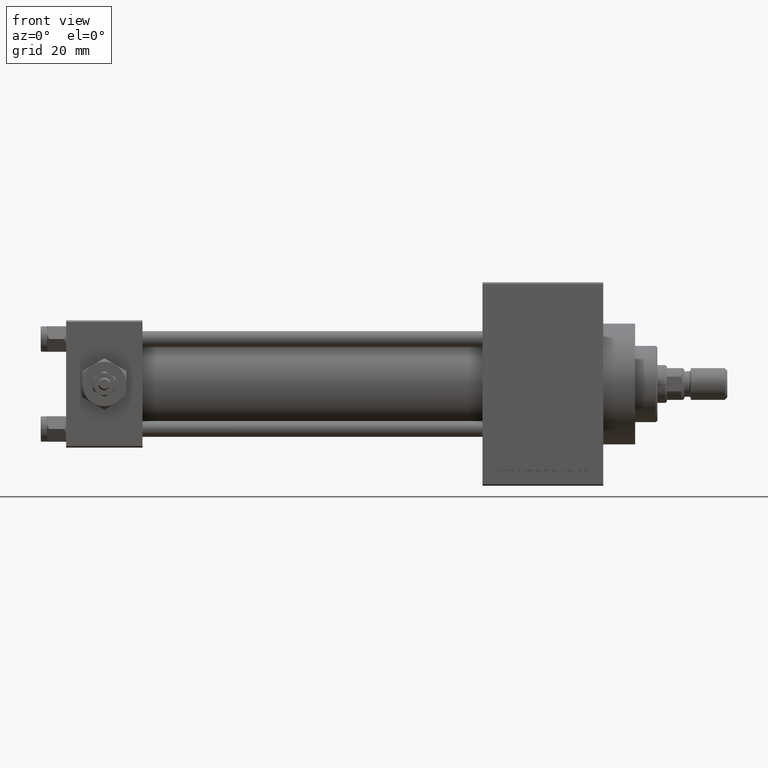
[diagram: clean part render]
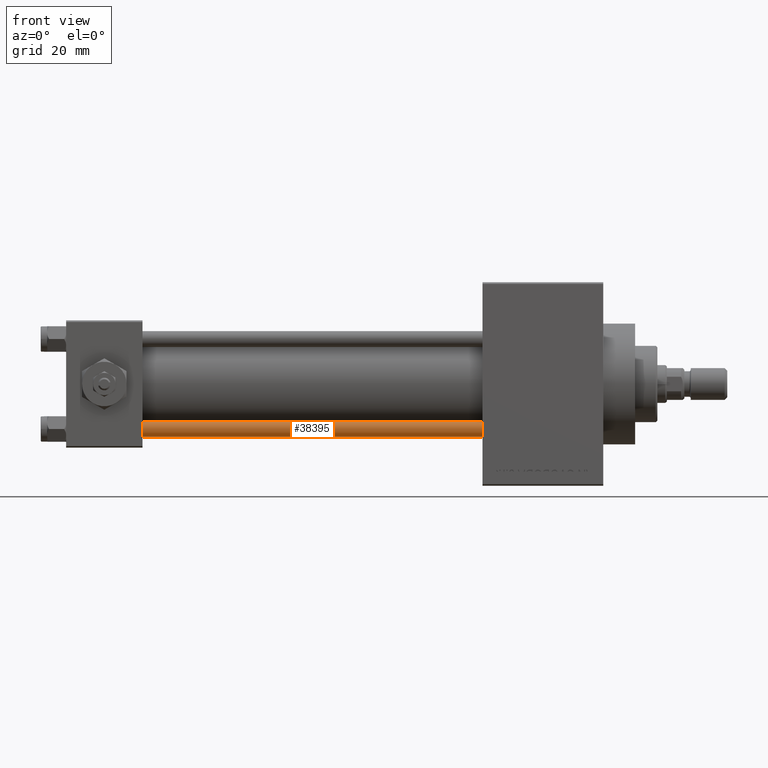
[diagram: same view with one face highlighted and labeled with its STEP entity id]
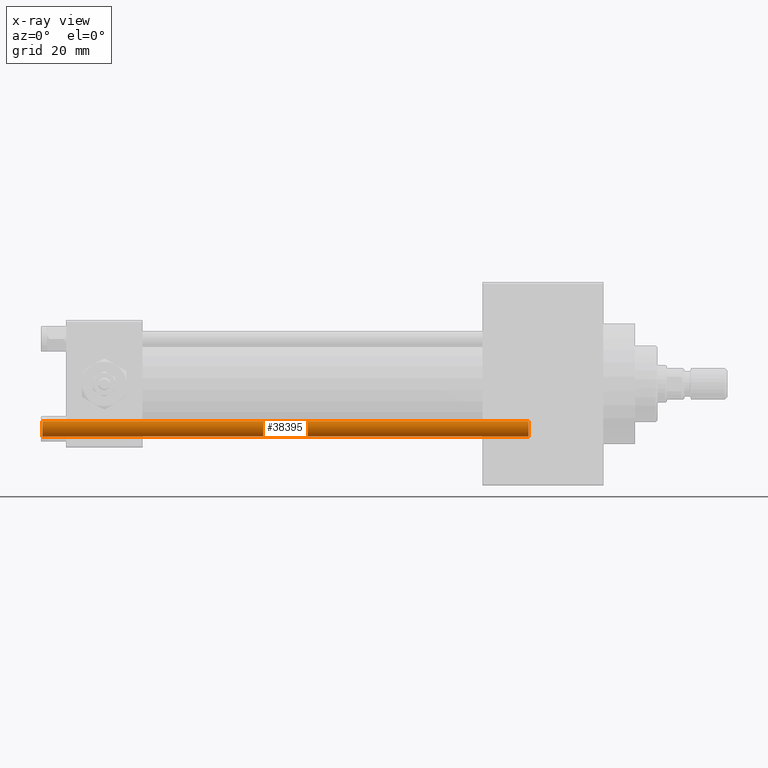
[diagram: x-ray of the same camera — body ghosted, the highlighted face saturated]
A machine part, front view. The second image highlights one B-rep face of the part: STEP entity #38395.
The next image is the same camera in x-ray: the body ghosted, the highlighted face saturated — about 0% of this face is hidden behind the body in this view.
In plain terms, the highlighted cylindrical surface (edge-blend (fillet) strip) has radius 2.5 mm, axis along (1, 0, 0).
Its self-contained STEP definition (entity closure, byte-faithful):
#430 = DIRECTION ( 'NONE',  ( -0.000000000000000000, -0.000000000000000000, -1.000000000000000000 ) ) ;
#1504 = VECTOR ( 'NONE', #39413, 1000.000000000000000 ) ;
#4557 = ORIENTED_EDGE ( 'NONE', *, *, #29814, .T. ) ;
#7951 = CARTESIAN_POINT ( 'NONE',  ( 2.500000000000000000, 3.061616997868383141E-16, 154.0000000000000000 ) ) ;
#11100 = EDGE_LOOP ( 'NONE', ( #4557, #30022, #28176, #47627 ) ) ;
#12109 = CIRCLE ( 'NONE', #34450, 2.500000000000000000 ) ;
#12214 = DIRECTION ( 'NONE',  ( -1.000000000000000000, 0.000000000000000000, 0.000000000000000000 ) ) ;
#13236 = CARTESIAN_POINT ( 'NONE',  ( -2.500000000000000000, 0.000000000000000000, 0.5000000000000281997 ) ) ;
#15051 = CARTESIAN_POINT ( 'NONE',  ( -2.500000000000000000, 0.000000000000000000, 153.5000000000000284 ) ) ;
#16457 = CARTESIAN_POINT ( 'NONE',  ( 0.000000000000000000, 0.000000000000000000, 154.0000000000000000 ) ) ;
#16756 = DIRECTION ( 'NONE',  ( 1.000000000000000000, 0.000000000000000000, 0.000000000000000000 ) ) ;
#19683 = CARTESIAN_POINT ( 'NONE',  ( -2.500000000000000000, 0.000000000000000000, 154.0000000000000000 ) ) ;
#20046 = CIRCLE ( 'NONE', #26469, 2.500000000000000000 ) ;
#20169 = LINE ( 'NONE', #19683, #43941 ) ;
#20869 = DIRECTION ( 'NONE',  ( 0.000000000000000000, 0.000000000000000000, -1.000000000000000000 ) ) ;
#20913 = EDGE_CURVE ( 'NONE', #46590, #27019, #23443, .T. ) ;
#21462 = CARTESIAN_POINT ( 'NONE',  ( 2.500000000000000000, 3.061616997868383141E-16, 0.5000000000000281997 ) ) ;
#23443 = LINE ( 'NONE', #7951, #1504 ) ;
#26469 = AXIS2_PLACEMENT_3D ( 'NONE', #46995, #40004, #16756 ) ;
#27019 = VERTEX_POINT ( 'NONE', #21462 ) ;
#27871 = DIRECTION ( 'NONE',  ( 1.000000000000000000, 0.000000000000000000, 0.000000000000000000 ) ) ;
#28176 = ORIENTED_EDGE ( 'NONE', *, *, #37948, .T. ) ;
#28194 = DIRECTION ( 'NONE',  ( -0.000000000000000000, -0.000000000000000000, -1.000000000000000000 ) ) ;
#29814 = EDGE_CURVE ( 'NONE', #36051, #46590, #12109, .T. ) ;
#30022 = ORIENTED_EDGE ( 'NONE', *, *, #20913, .T. ) ;
#33453 = EDGE_CURVE ( 'NONE', #36051, #36189, #20169, .T. ) ;
#34128 = CARTESIAN_POINT ( 'NONE',  ( 2.500000000000000000, 3.061616997868383141E-16, 153.5000000000000284 ) ) ;
#34450 = AXIS2_PLACEMENT_3D ( 'NONE', #39368, #20869, #27871 ) ;
#36051 = VERTEX_POINT ( 'NONE', #15051 ) ;
#36189 = VERTEX_POINT ( 'NONE', #13236 ) ;
#37948 = EDGE_CURVE ( 'NONE', #27019, #36189, #20046, .T. ) ;
#38395 = ADVANCED_FACE ( 'NONE', ( #46696 ), #46454, .T. ) ;
#39368 = CARTESIAN_POINT ( 'NONE',  ( 0.000000000000000000, 0.000000000000000000, 153.5000000000000284 ) ) ;
#39413 = DIRECTION ( 'NONE',  ( -0.000000000000000000, -0.000000000000000000, -1.000000000000000000 ) ) ;
#40004 = DIRECTION ( 'NONE',  ( -0.000000000000000000, -0.000000000000000000, 1.000000000000000000 ) ) ;
#43176 = AXIS2_PLACEMENT_3D ( 'NONE', #16457, #28194, #12214 ) ;
#43941 = VECTOR ( 'NONE', #430, 1000.000000000000000 ) ;
#46454 = CYLINDRICAL_SURFACE ( 'NONE', #43176, 2.500000000000000000 ) ;
#46590 = VERTEX_POINT ( 'NONE', #34128 ) ;
#46696 = FACE_OUTER_BOUND ( 'NONE', #11100, .T. ) ;
#46995 = CARTESIAN_POINT ( 'NONE',  ( 0.000000000000000000, 0.000000000000000000, 0.5000000000000281997 ) ) ;
#47627 = ORIENTED_EDGE ( 'NONE', *, *, #33453, .F. ) ;